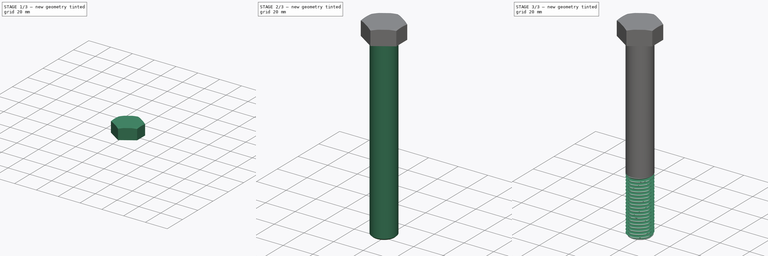
[diagram: build sequence overview — one tinted view per stage of 3, left to right]
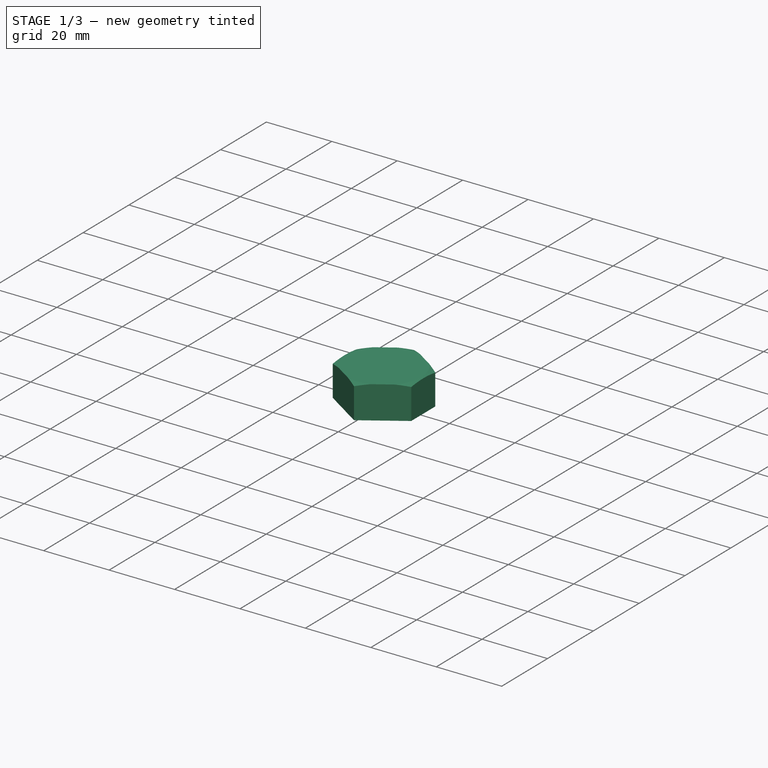
[diagram: stage 1 of 3 — iso view after this stage's code; geometry added in this stage tinted green]
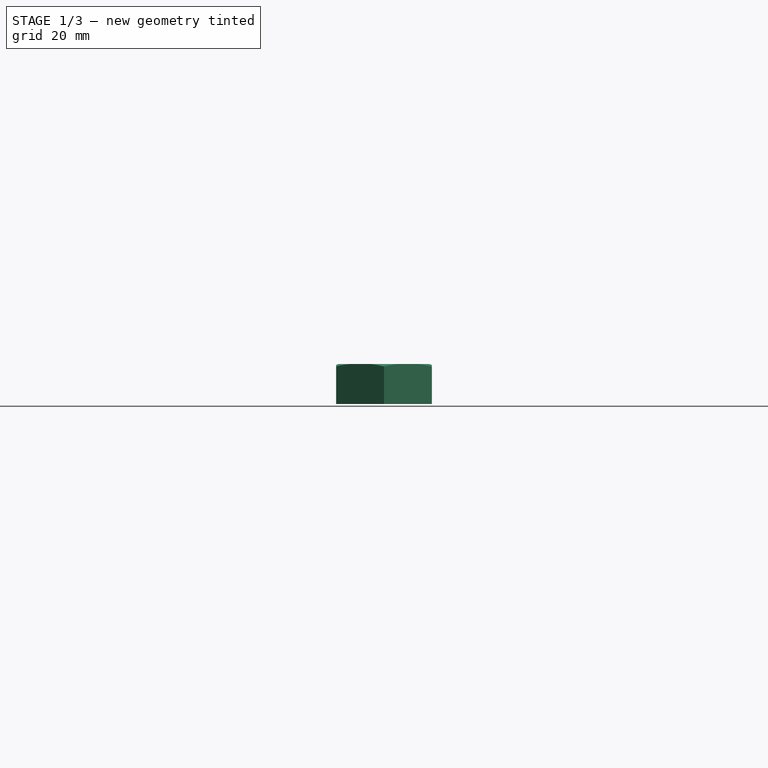
[diagram: stage 1 of 3 — front view after this stage's code; geometry added in this stage tinted green]
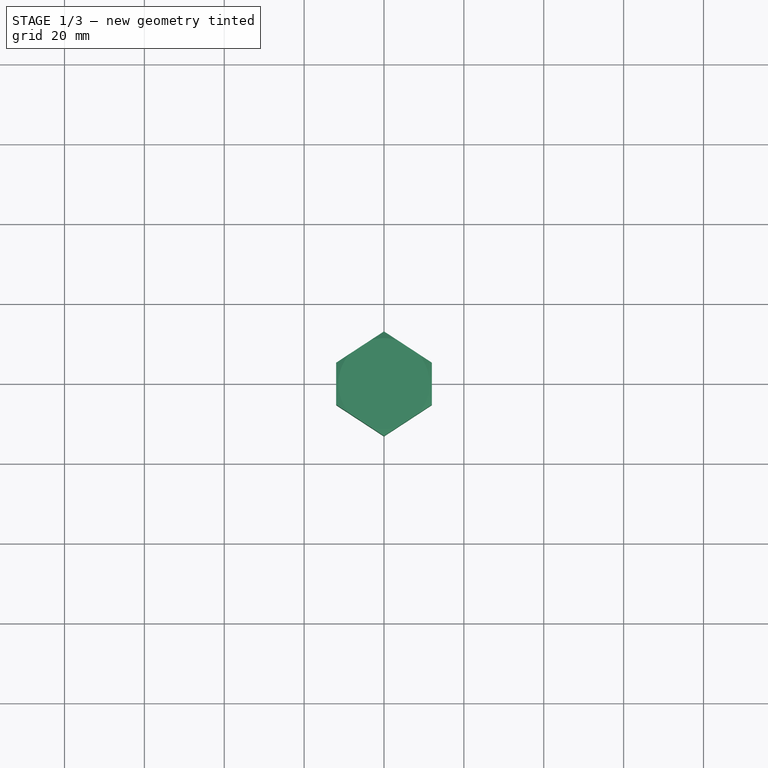
[diagram: stage 1 of 3 — top view after this stage's code; geometry added in this stage tinted green]
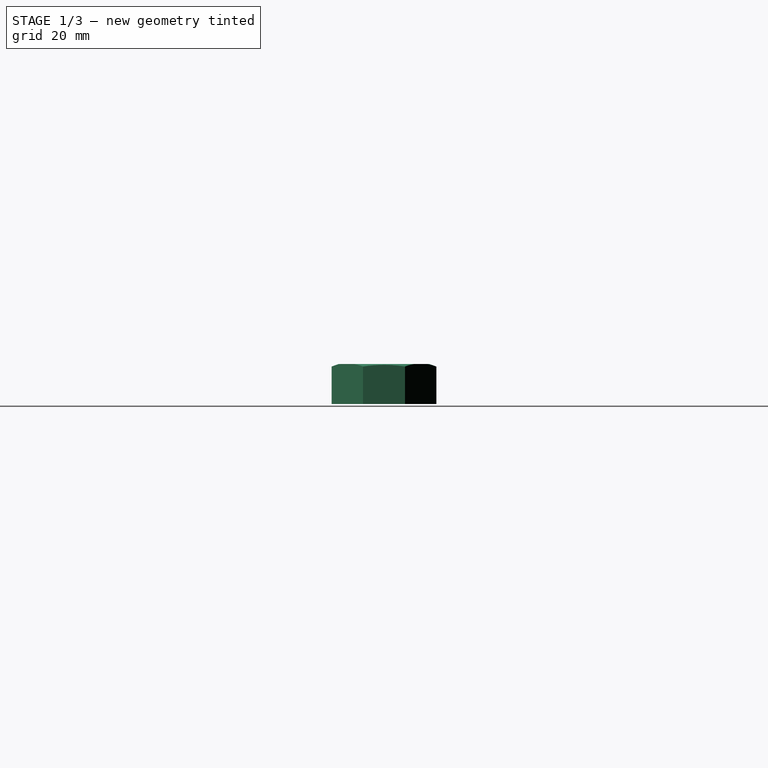
[diagram: stage 1 of 3 — right view after this stage's code; geometry added in this stage tinted green]
FCSTD DOCUMENT  (FreeCAD 0.21R33771 (Git))
Label: boltM16
License: All rights reserved
LicenseURL: http://en.wikipedia.org/wiki/All_rights_reserved
objects: Sketcher::SketchObject×3, PartDesign::Pad×2, PartDesign::Groove×1, Part::FeaturePython×1, PartDesign::Chamfer×1, PartDesign::Body×1, Part::Cut×1, Part::Fillet×1
note: 15 computed .brp shape members not serialized (recipe doc carries the construction recipe); baked Part::Feature solids carry a one-line shape summary decoded from their .brp

FEATURE [Sketcher::SketchObject] Sketch
  FullyConstrained = false
  MapMode = 5
  Support = -> [XY_Plane]
  sketch-geometry (7):
    g0: LineSegment StartX=12 StartY=-5.25452 StartZ=0 EndX=12 EndY=5.25452 EndZ=0
    g1: LineSegment StartX=12 StartY=5.25452 StartZ=0 EndX=5.57547e-10 EndY=13.1 EndZ=0
    g2: LineSegment StartX=5.57547e-10 StartY=13.1 StartZ=0 EndX=-12 EndY=5.25452 EndZ=0
    g3: LineSegment StartX=-12 StartY=5.25452 StartZ=0 EndX=-12 EndY=-5.25452 EndZ=0
    g4: LineSegment StartX=-12 StartY=-5.25452 StartZ=0 EndX=-5.33038e-10 EndY=-13.1 EndZ=0
    g5: LineSegment StartX=-5.33038e-10 StartY=-13.1 StartZ=0 EndX=12 EndY=-5.25452 EndZ=0
    g6: Circle CenterX=0 CenterY=0 CenterZ=0 NormalX=0 NormalY=0 NormalZ=1 AngleXU=0 Radius=13.1
  constraints (18):
    c: Coincident(g0,g1)
    c: Coincident(g1,g2)
    c: Coincident(g2,g3)
    c: Coincident(g3,g4)
    c: Coincident(g4,g5)
    c: Coincident(g5,g0)
    c: Equal(g0,g3)
    c: PointOnObject(g0,g6)
    c: PointOnObject(g1,g6)
    c: PointOnObject(g2,g6)
    c: PointOnObject(g3,g6)
    c: PointOnObject(g4,g6)
    c: PointOnObject(g5,g6)
    c: Coincident(g6,g-1)
    c: Parallel(g3,g-2)
    c: DistanceY(g4,g1) = 26.2
    c: DistanceX(g3,g0) = 24
    c: Parallel(g0,g-2)
FEATURE [PartDesign::Pad] Pad
  Direction = (0,0,1)
  Length = 10
  Length2 = 10
  Profile = -> Sketch
  ReferenceAxis = -> Sketch [N_Axis]
  Refine = true
  Type = 0
FEATURE [Sketcher::SketchObject] Sketch001
  FullyConstrained = false
  MapMode = 5
  Placement = pos=(0,0,0) rot=(0.57735,0.57735,0.57735;2.0944rad)
  Support = -> [YZ_Plane]
  sketch-geometry (4):
    g0: LineSegment StartX=0 StartY=10 StartZ=0 EndX=11.4 EndY=10 EndZ=0
    g1: LineSegment StartX=11.4 StartY=10 StartZ=0 EndX=23.0874 EndY=10 EndZ=0
    g2: LineSegment StartX=23.0874 StartY=10 StartZ=0 EndX=23.0874 EndY=5.74612 EndZ=0
    g3: LineSegment StartX=11.4 StartY=10 StartZ=0 EndX=23.0874 EndY=5.74612 EndZ=0
  constraints (11):
    c: PointOnObject(g0,g-2)
    c: Horizontal(g0)
    c: DistanceY(g-1,g0) = 10
    c: DistanceX(g0,g0) = 11.4
    c: Coincident(g1,g0)
    c: Horizontal(g1)
    c: Coincident(g2,g1)
    c: Vertical(g2)
    c: Coincident(g3,g0)
    c: Coincident(g3,g2)
    c: Angle(g3,g1) = 0.349066
FEATURE [PartDesign::Groove] Groove
  Angle = 360
  Axis = (-2e-16,3e-16,1)
  Base = (0,0,0)
  BaseFeature = -> Pad
  Profile = -> Sketch001
  ReferenceAxis = -> Sketch001 [V_Axis]
  Refine = true
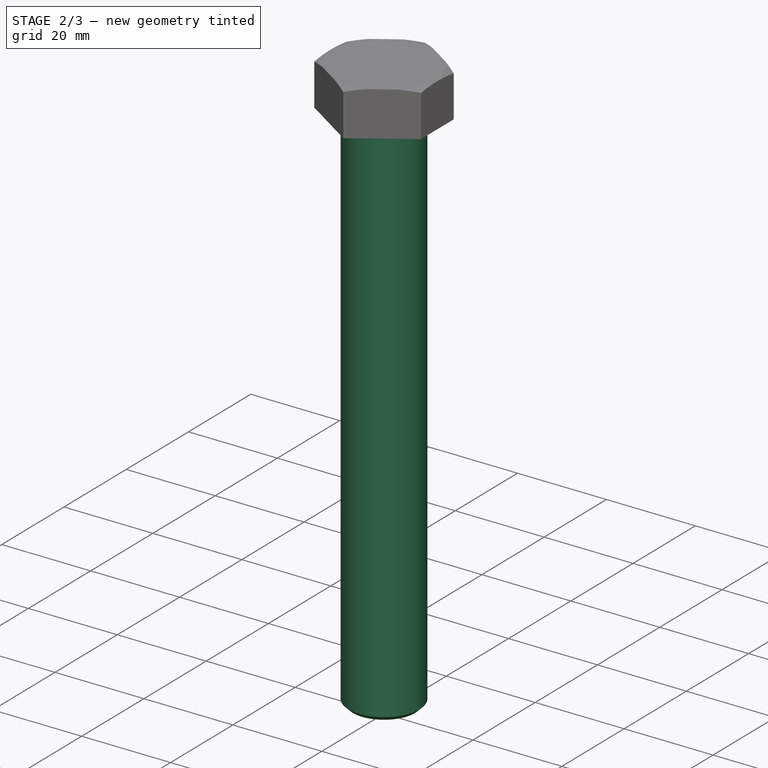
[diagram: stage 2 of 3 — iso view after this stage's code; geometry added in this stage tinted green]
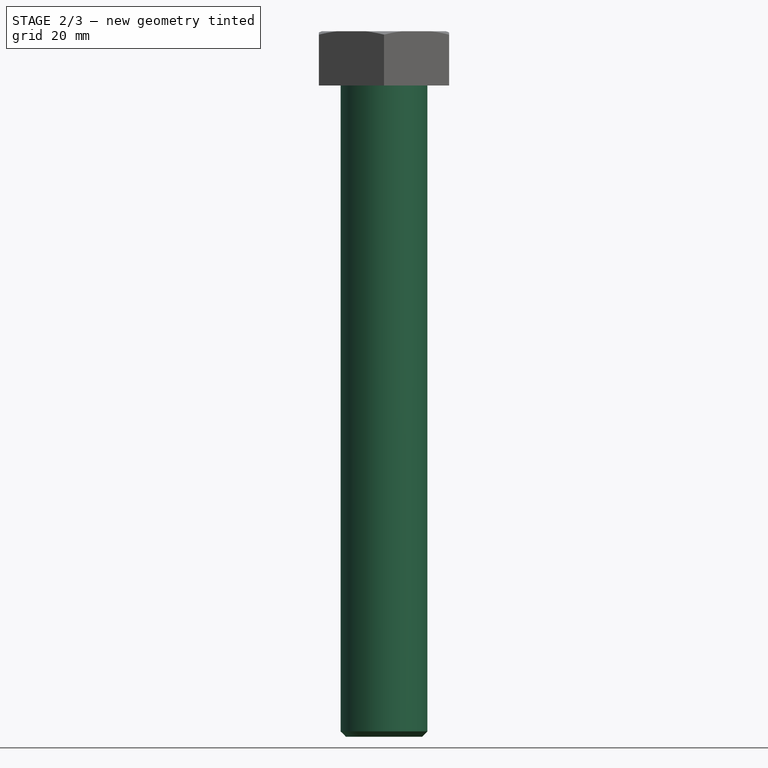
[diagram: stage 2 of 3 — front view after this stage's code; geometry added in this stage tinted green]
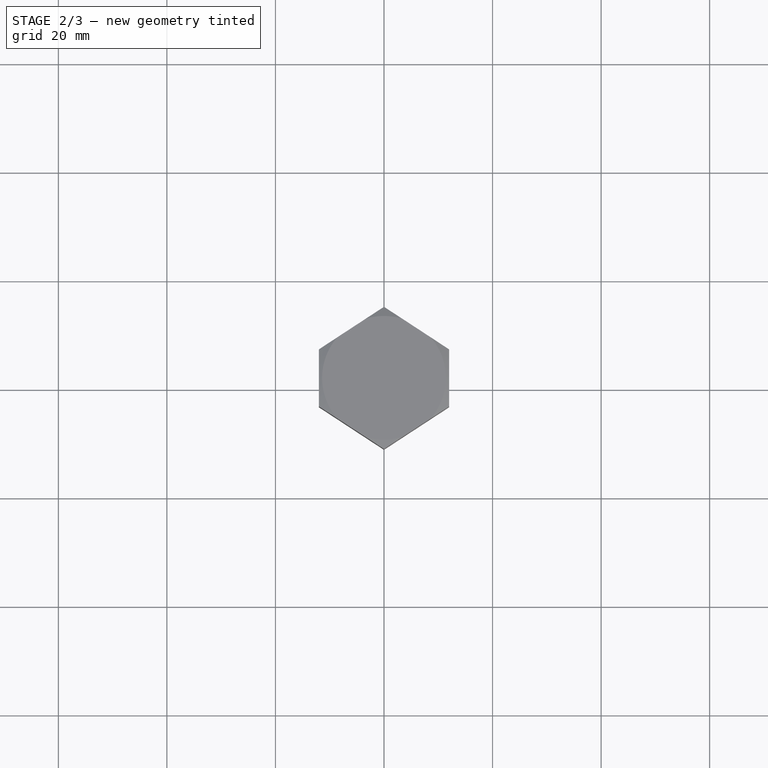
[diagram: stage 2 of 3 — top view after this stage's code; geometry added in this stage tinted green]
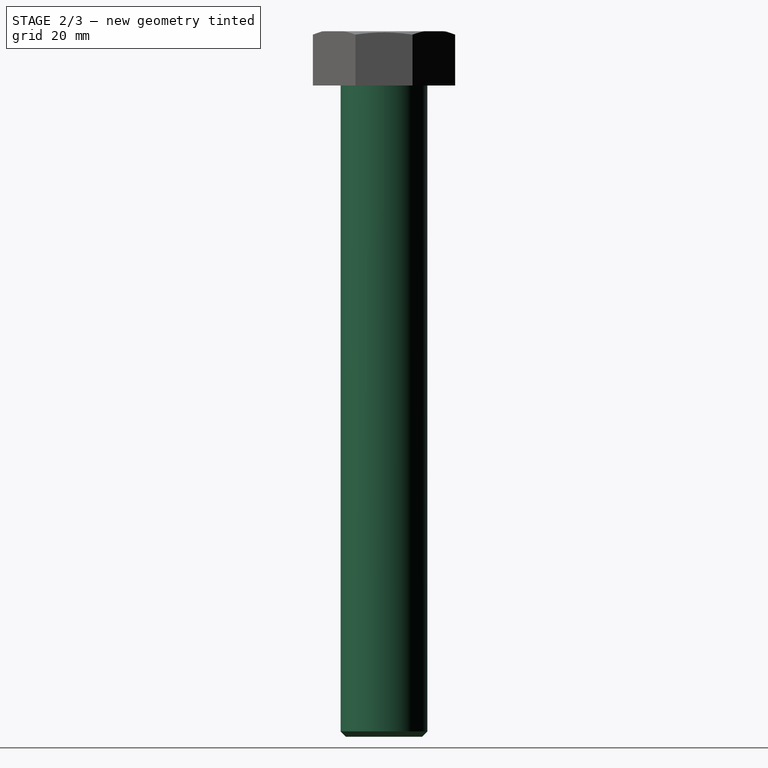
[diagram: stage 2 of 3 — right view after this stage's code; geometry added in this stage tinted green]
FEATURE [Sketcher::SketchObject] Sketch002
  FullyConstrained = true
  MapMode = 5
  Placement = pos=(0,0,0) rot=(1,0,0;3.14159rad)
  Support = -> [Groove]
  sketch-geometry (1):
    g0: Circle CenterX=0 CenterY=0 CenterZ=0 NormalX=0 NormalY=0 NormalZ=1 AngleXU=0 Radius=8
  constraints (2):
    c: Coincident(g0,g-1)
    c: Radius(g0) = 8
FEATURE [PartDesign::Pad] Pad001
  BaseFeature = -> Groove
  Direction = (0,0,-1)
  Length = 120
  Length2 = 10
  Profile = -> Sketch002
  ReferenceAxis = -> Sketch002 [N_Axis]
  Refine = true
  Type = 0
FEATURE [PartDesign::Chamfer] Chamfer
  Angle = 45
  Base = -> Pad001 [Edge30]
  BaseFeature = -> Pad001
  ChamferType = 0
  FlipDirection = false
  Refine = true
  Size = 1
  Size2 = 1
  SupportTransform = false
  UseAllEdges = false
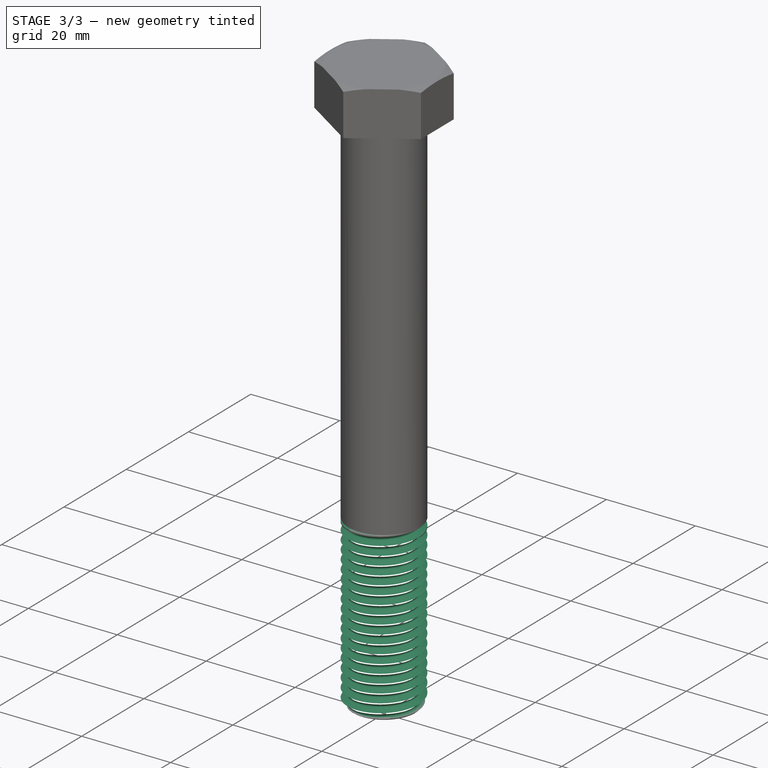
[diagram: stage 3 of 3 — iso view after this stage's code; geometry added in this stage tinted green]
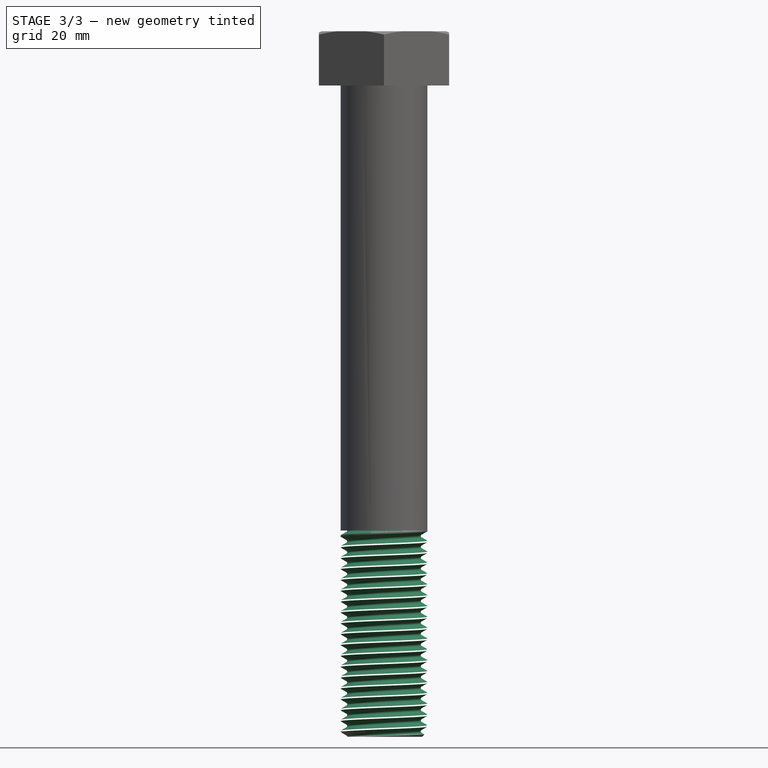
[diagram: stage 3 of 3 — front view after this stage's code; geometry added in this stage tinted green]
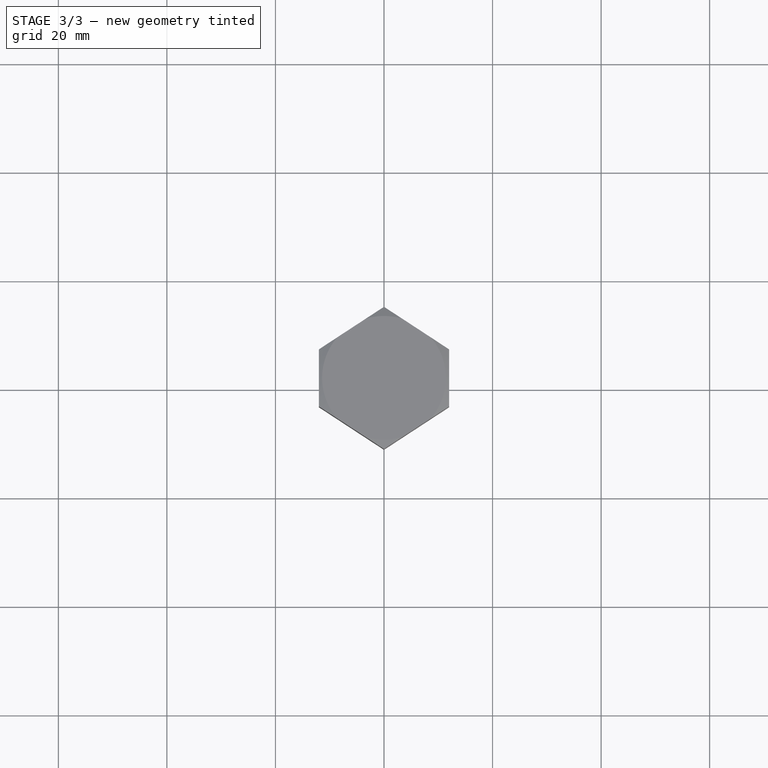
[diagram: stage 3 of 3 — top view after this stage's code; geometry added in this stage tinted green]
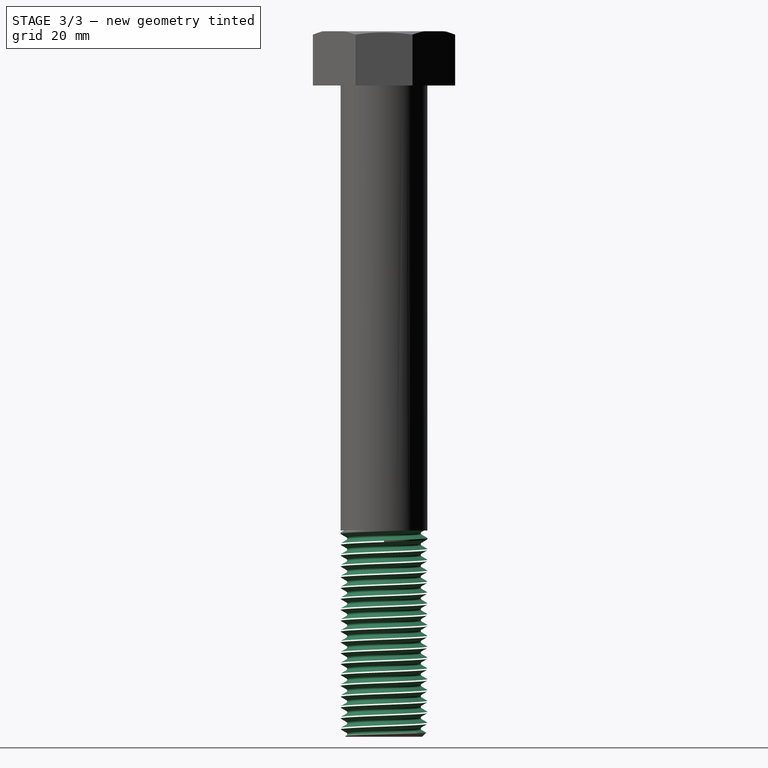
[diagram: stage 3 of 3 — right view after this stage's code; geometry added in this stage tinted green]
FEATURE [Part::FeaturePython] ScrewDie  label="M16x38-ScrewDie"  # Fasteners workbench fastener (typed FeaturePython)
  Placement = pos=(0,0,-82) rot=(0,0,1;0rad)
  diameter = 13
  diameterCustom = 6
  invert = false
  leftHanded = false
  length = 38
  matchOuter = false
  offset = 0
  pitchCustom = 1
  thread = true
  type = 0
FEATURE [PartDesign::Body] Body
  Group = -> [Sketch,Pad,Sketch001,Groove,Sketch002,Pad001,Chamfer]
  Origin = -> Origin
  Tip = -> Chamfer
FEATURE [Part::Cut] Cut
  Base = -> Body
  Refine = true
  Tool = -> ScrewDie
FEATURE [Part::Fillet] Fillet
  Base = -> Cut
  Edges = 1 edges r=1: [Edge152]
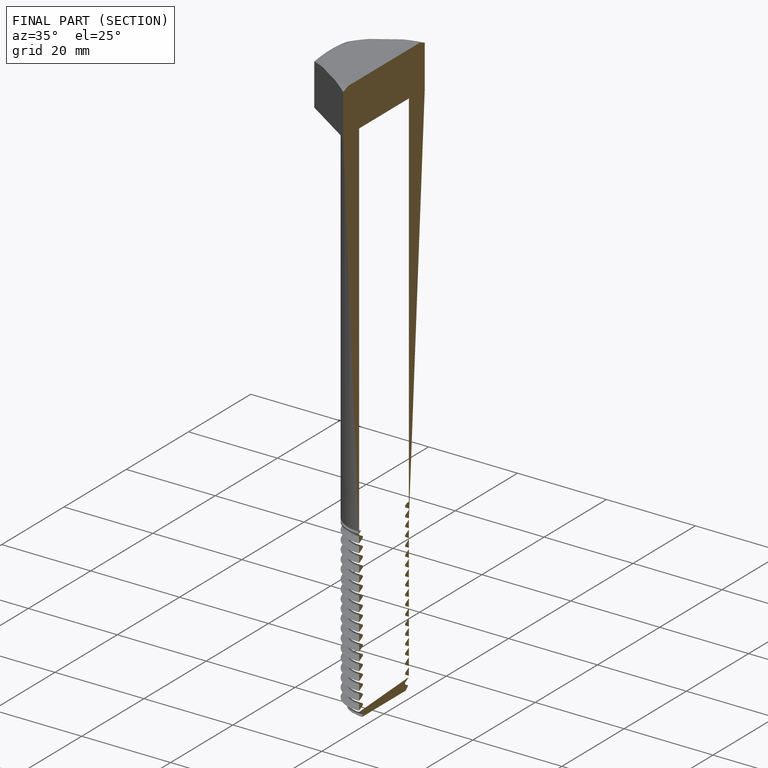
[diagram: finished part — half-section view (interior)]
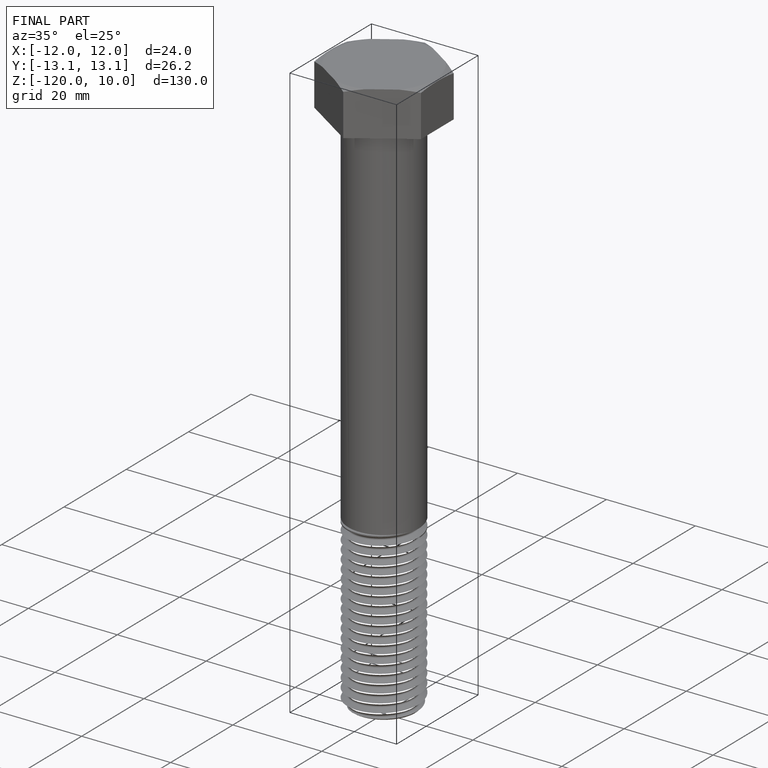
[diagram: finished part — iso view with bounding-box wireframe]
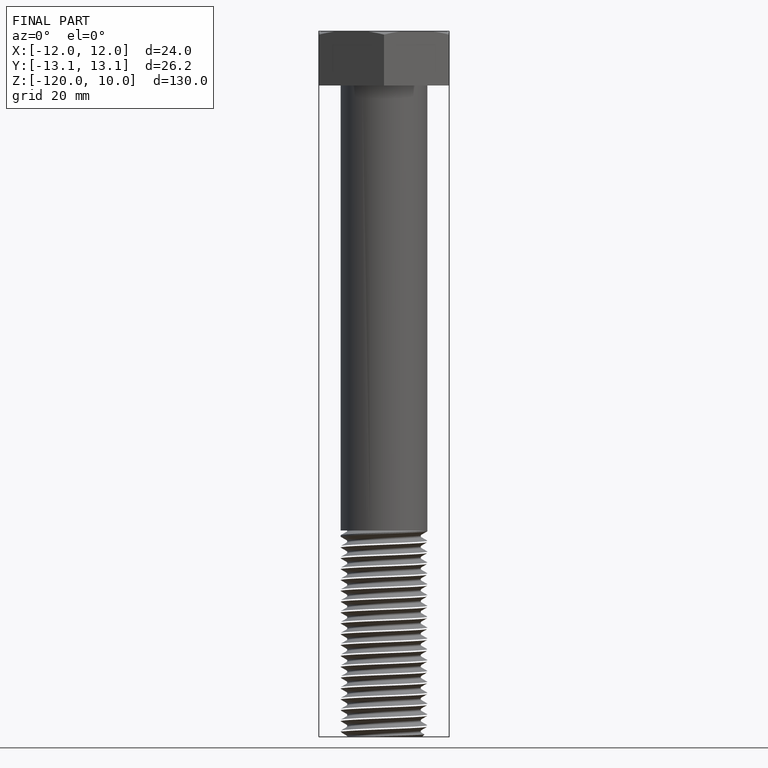
[diagram: finished part — front view with bounding-box wireframe]
